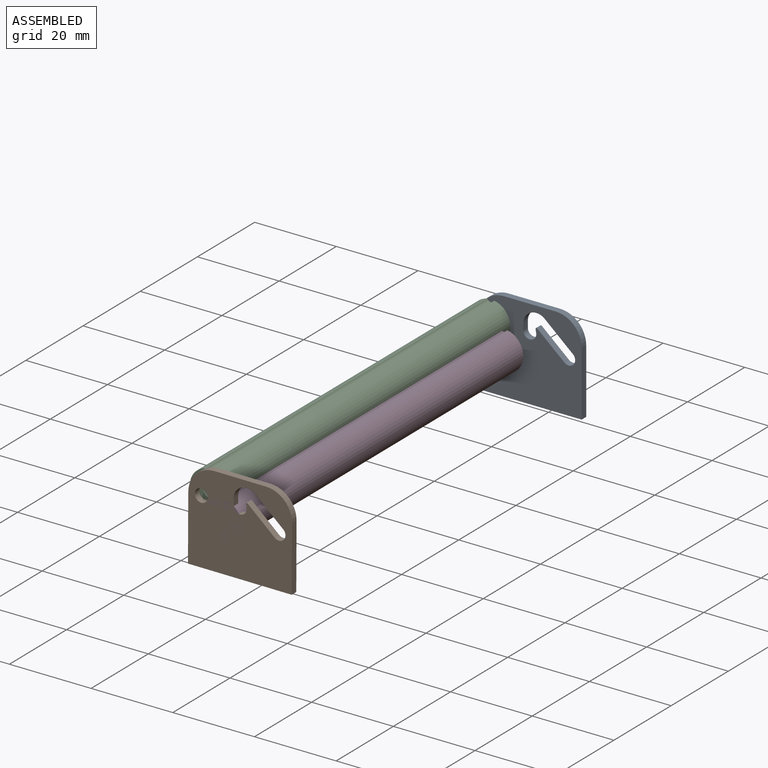
[diagram: assembled view]
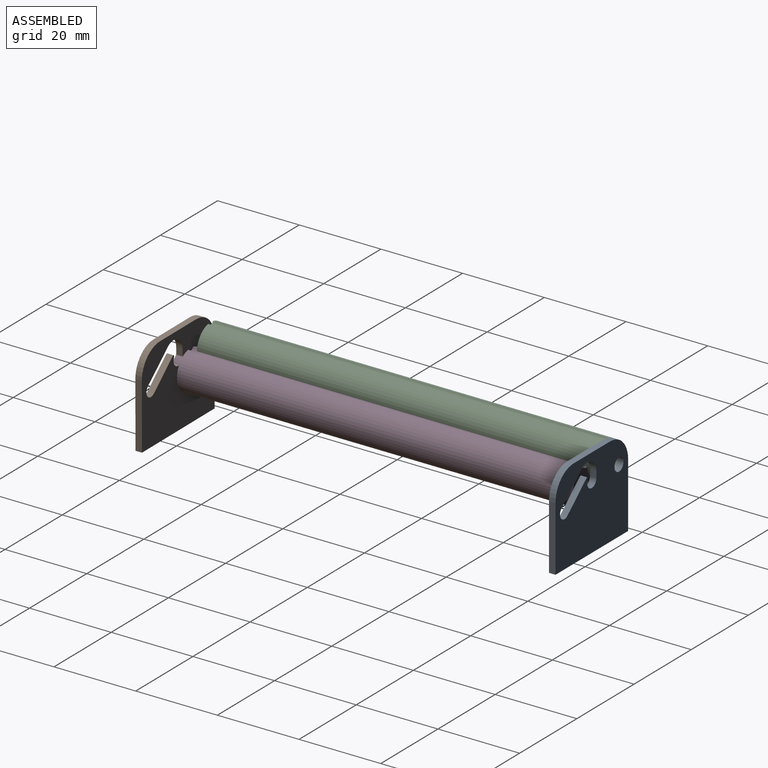
[diagram: assembled view, second angle]
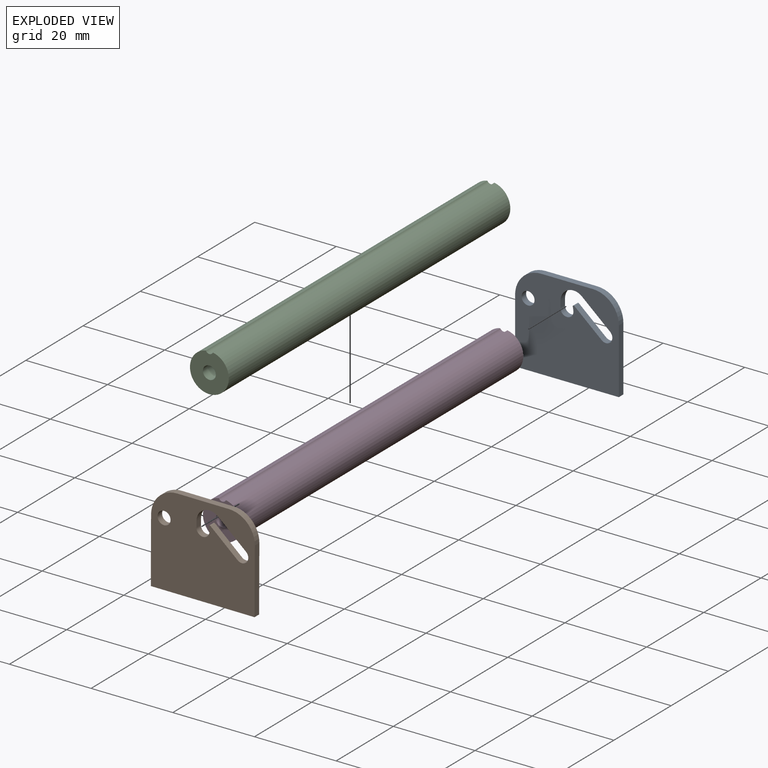
[diagram: exploded view]
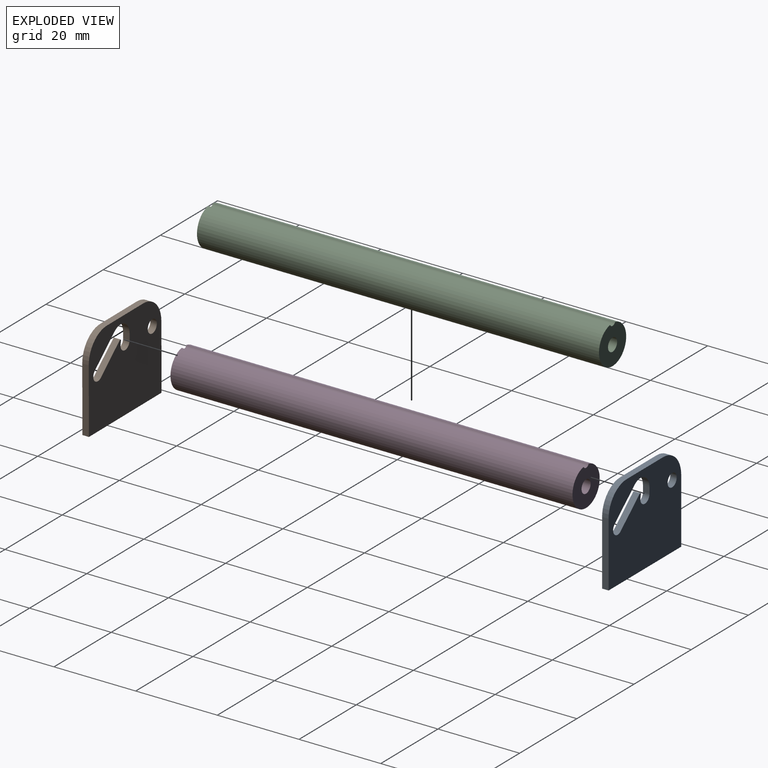
[diagram: exploded view, second angle]
ASSEMBLY  parts=4 mates=2
PART A: 18 faces, bbox 25.4x1.6x22.2 mm
  f0: plane 6.9x5.96mm, normal (-0.65,0,-0.76), area 14.5mm2, adj f1,f13,f16,f17
  f1: cylinder r=1.59mm len=2.79mm, axis (0,1,0), area 7.9mm2, adj f0,f2,f16,f17
  f2: plane 6.63x5.73mm, normal (0.65,0,0.76), area 13.9mm2, adj f1,f3,f16,f17
  f3: cylinder r=0.35mm len=1.59mm, axis (0,1,0), area 0.5mm2, adj f2,f4,f16,f17
  f4: cylinder r=0.25mm len=1.59mm, axis (0,1,0), area 0.6mm2, adj f3,f5,f16,f17
  f5: plane 1.59x0.82mm, normal (-0.98,0,-0.18), area 1.3mm2, adj f4,f6,f16,f17
  f6: cylinder r=1.59mm len=3.18mm, axis (0,1,0), area 8.4mm2, adj f5,f7,f16,f17
  f7: plane 1.59x1.53mm, normal (1,0,0), area 2.4mm2, adj f6,f13,f16,f17
  f8: plane 25.4x1.59mm, normal (0,0,-1), area 40.3mm2, adj f9,f14,f16,f17
  f9: plane 15.88x1.59mm, normal (1,0,0), area 25.2mm2, adj f8,f10,f16,f17
  f10: cylinder r=6.35mm len=6.35mm, axis (0,1,0), area 15.8mm2, adj f9,f11,f16,f17
  f11: plane 12.7x1.59mm, normal (0,0,1), area 20.2mm2, adj f10,f12,f16,f17
  f12: cylinder r=6.35mm len=6.35mm, axis (0,1,0), area 15.8mm2, adj f11,f14,f16,f17
  f13: cylinder r=3.17mm len=5.25mm, axis (0,1,0), area 11.5mm2, adj f0,f7,f16,f17
  f14: plane 15.88x1.59mm, normal (-1,0,0), area 25.2mm2, adj f8,f12,f16,f17
  f15: cylinder r=1.59mm len=3.18mm, axis (0,1,0), area 15.8mm2, adj f16,f17
  f16: plane 25.4x22.23mm, normal (0,-1,0), area 486.2mm2, adj f0,f1,f2,f3,f4,f5,f6,f7
  f17: plane 25.4x22.23mm, normal (0,1,0), area 486.2mm2, adj f0,f1,f2,f3,f4,f5,f6,f7
PART B: same geometry as A
PART C: 5 faces, bbox 9.5x98.4x9.4 mm
  f0: cylinder r=1.59mm len=98.43mm, axis (0,1,0), area 981.7mm2, adj f2,f3
  f1: cylinder r=4.76mm len=98.43mm, axis (0,1,0), area 2773.8mm2, adj f2,f3,f4
  f2: plane 9.53x9.45mm, normal (0,-1,0), area 62.6mm2, adj f0,f1,f4
  f3: plane 9.53x9.45mm, normal (0,1,0), area 62.6mm2, adj f0,f1,f4
  f4: cylinder r=0.95mm len=98.43mm, axis (0,-1,0), area 213.9mm2, adj f1,f2,f3
PART D: same geometry as C
PLACE A t=(-6.68,79.47,-32.36)mm fixed
PLACE B rot(axis=(0,1,0),0.2deg) t=(-6.77,-21.81,-32.47)mm
PLACE C t=(-50.49,77.88,-42.59)mm
PLACE D t=(-45.31,75.03,-46.67)mm
MATE revolute A.f15 <-> C.f0  axis (0,-1,0) through (-32.66,77.88,-12.14)mm
MATE revolute C.f0 <-> B.f15  axis (0,-1,0) through (-32.66,-20.54,-12.14)mm
